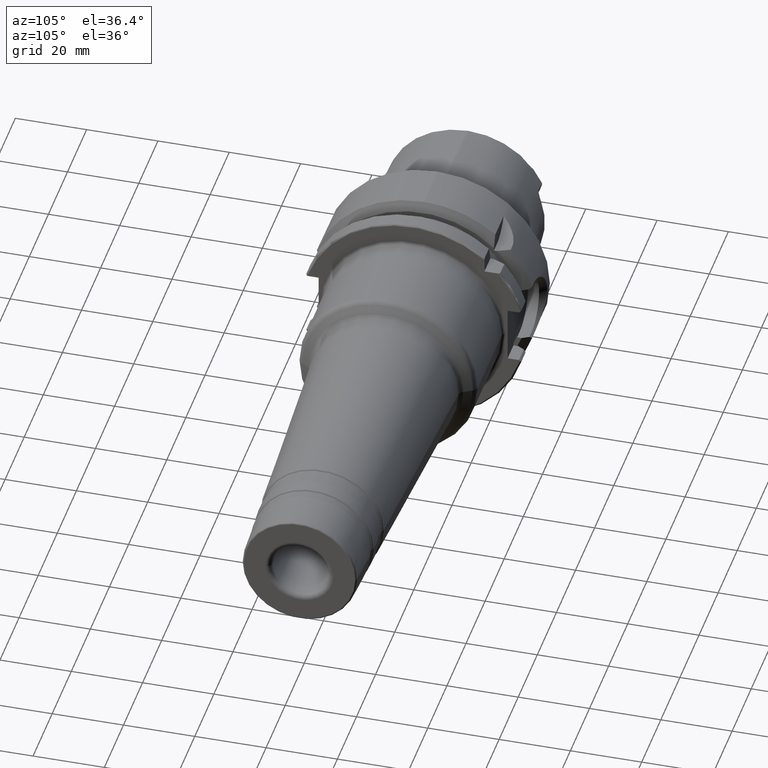
[diagram: clean part render]
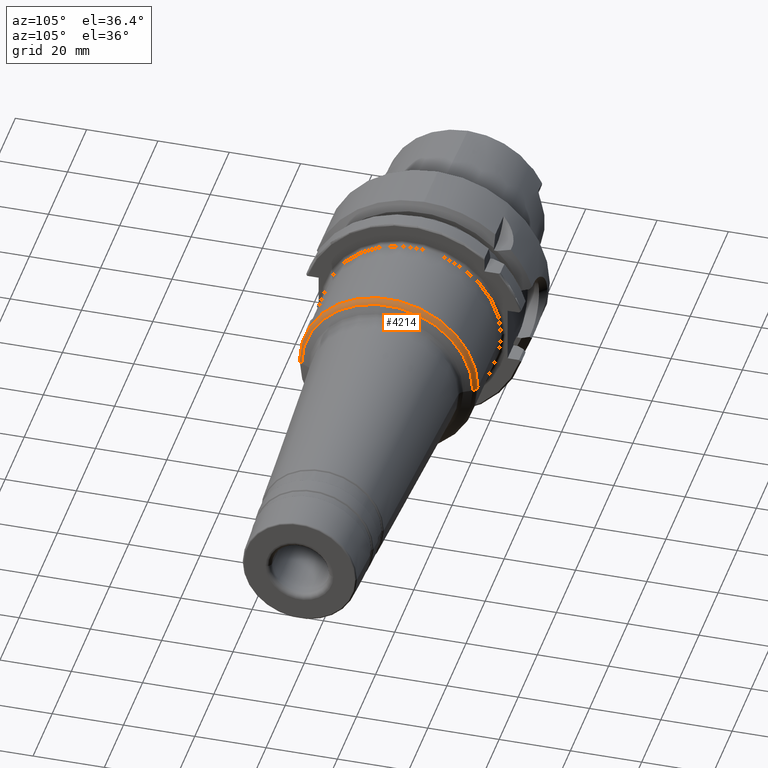
[diagram: same view with one face highlighted and labeled with its STEP entity id]
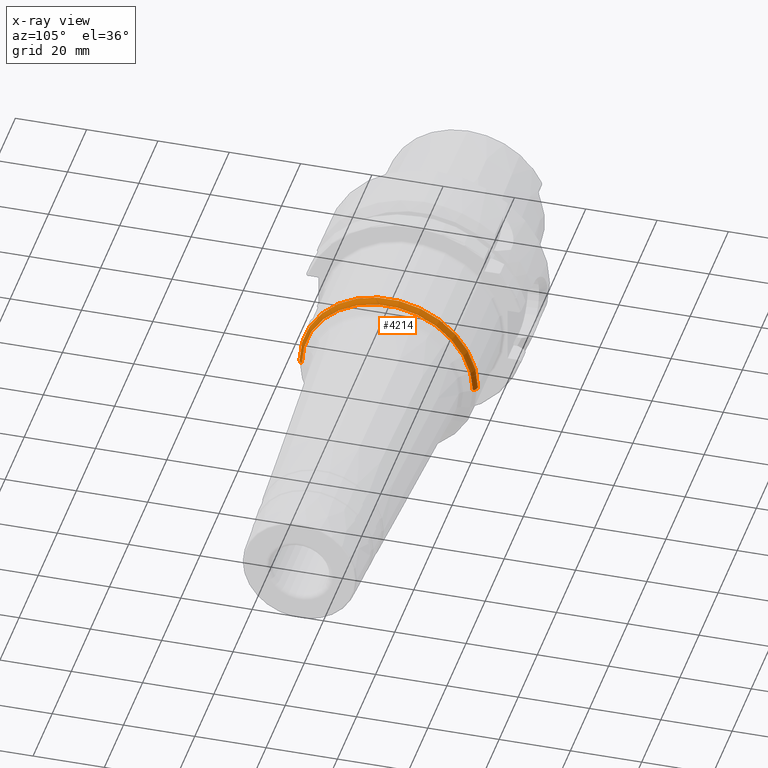
[diagram: x-ray of the same camera — body ghosted, the highlighted face saturated]
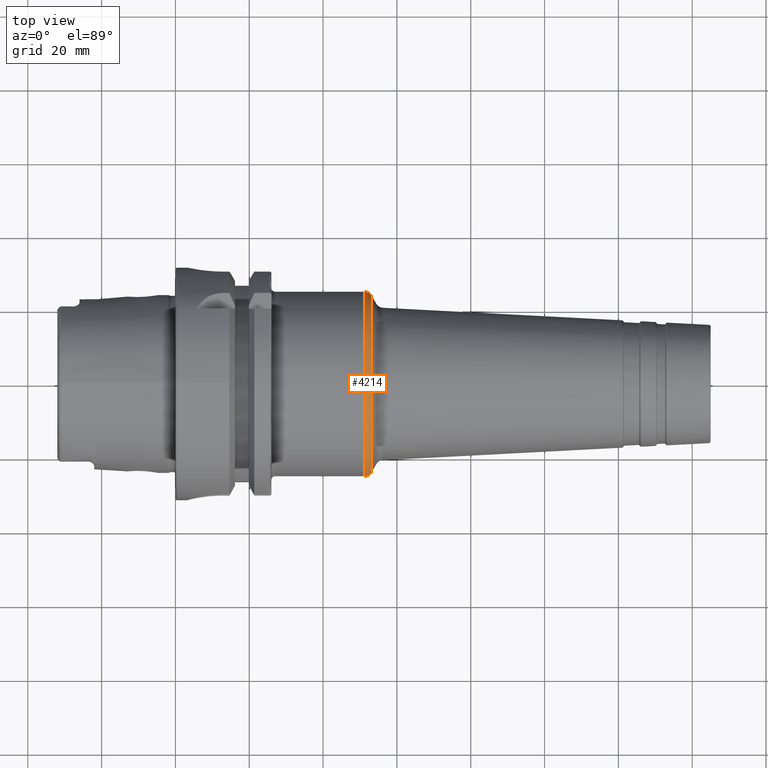
[diagram: same view with one face highlighted and labeled with its STEP entity id]
A machine part, auxiliary view. The second image highlights one B-rep face of the part: STEP entity #4214.
The next image is the same camera in x-ray: the body ghosted, the highlighted face saturated — about 0% of this face is hidden behind the body in this view.
A second angle (top view) of the same face is appended — the face is thin or edge-on in the first view.
In plain terms, the highlighted toroidal blend (fillet) surface has major radius 22.9934 mm and minor (blend) radius 2.0066 mm.
Its self-contained STEP definition (entity closure, byte-faithful):
#645=CARTESIAN_POINT('',(2.091480704180E0,0.E0,0.E0));
#646=DIRECTION('',(-1.E0,0.E0,0.E0));
#647=DIRECTION('',(0.E0,-1.E0,0.E0));
#648=AXIS2_PLACEMENT_3D('',#645,#646,#647);
#668=CARTESIAN_POINT('',(2.023064697281E0,9.052519685039E-1,
3.631712985896E-11));
#669=DIRECTION('',(0.E0,4.011825420480E-11,-1.E0));
#670=DIRECTION('',(8.881784197001E-13,1.E0,4.011825420480E-11));
#671=AXIS2_PLACEMENT_3D('',#668,#669,#670);
#691=CARTESIAN_POINT('',(2.023064697281E0,0.E0,0.E0));
#692=DIRECTION('',(-1.E0,0.E0,0.E0));
#693=DIRECTION('',(0.E0,-1.E0,0.E0));
#694=AXIS2_PLACEMENT_3D('',#691,#692,#693);
#701=CARTESIAN_POINT('',(2.023064697281E0,-9.052519685039E-1,
-3.631709516450E-11));
#702=DIRECTION('',(0.E0,-4.011821604089E-11,1.E0));
#703=DIRECTION('',(8.881784197001E-13,-1.E0,-4.011821604089E-11));
#704=AXIS2_PLACEMENT_3D('',#701,#702,#703);
#3250=CARTESIAN_POINT('',(2.023064697281E0,9.842519685039E-1,0.E0));
#3251=CARTESIAN_POINT('',(2.023064697281E0,-9.842519685039E-1,0.E0));
#3252=VERTEX_POINT('',#3250);
#3253=VERTEX_POINT('',#3251);
#3254=CARTESIAN_POINT('',(2.091480704180E0,9.447519685039E-1,0.E0));
#3255=CARTESIAN_POINT('',(2.091480704180E0,-9.447519685039E-1,0.E0));
#3256=VERTEX_POINT('',#3254);
#3257=VERTEX_POINT('',#3255);
#4203=CARTESIAN_POINT('',(2.023064697281E0,0.E0,0.E0));
#4204=DIRECTION('',(1.E0,0.E0,0.E0));
#4205=DIRECTION('',(0.E0,-9.999313295091E-1,-1.171905568640E-2));
#4206=AXIS2_PLACEMENT_3D('',#4203,#4204,#4205);
#4207=TOROIDAL_SURFACE('',#4206,9.052519685039E-1,7.9E-2);
#4208=ORIENTED_EDGE('',*,*,#4194,.T.);
#4209=ORIENTED_EDGE('',*,*,#4169,.T.);
#4210=ORIENTED_EDGE('',*,*,#4140,.F.);
#4211=ORIENTED_EDGE('',*,*,#4166,.F.);
#4212=EDGE_LOOP('',(#4208,#4209,#4210,#4211));
#4213=FACE_OUTER_BOUND('',#4212,.F.);
#4214=ADVANCED_FACE('',(#4213),#4207,.T.);
#649=CIRCLE('',#648,9.447519685039E-1);
#672=CIRCLE('',#671,7.9E-2);
#695=CIRCLE('',#694,9.842519685039E-1);
#705=CIRCLE('',#704,7.9E-2);
#4140=EDGE_CURVE('',#3257,#3256,#649,.T.);
#4166=EDGE_CURVE('',#3253,#3257,#705,.T.);
#4169=EDGE_CURVE('',#3252,#3256,#672,.T.);
#4194=EDGE_CURVE('',#3253,#3252,#695,.T.);